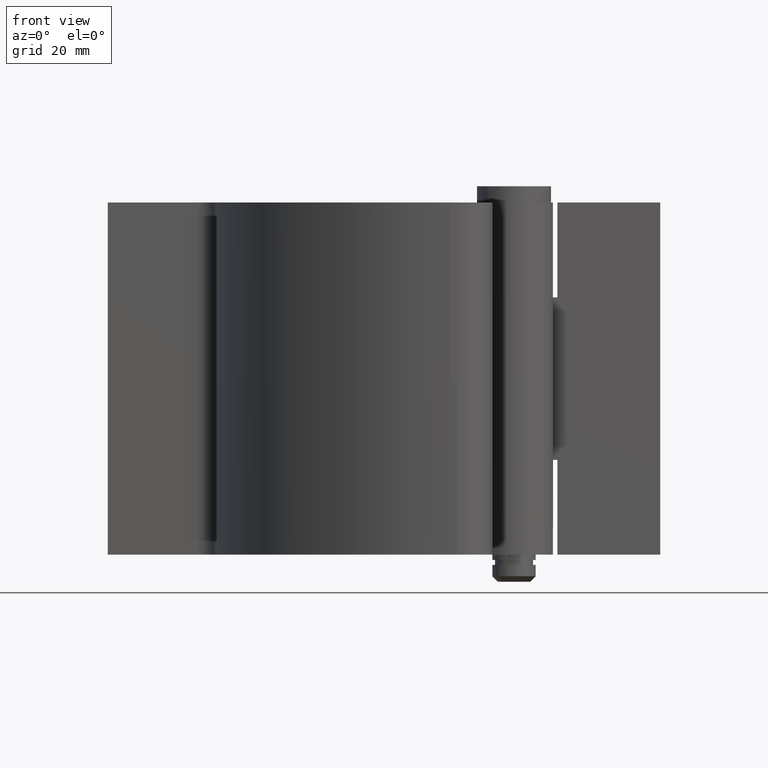
[diagram: clean part render]
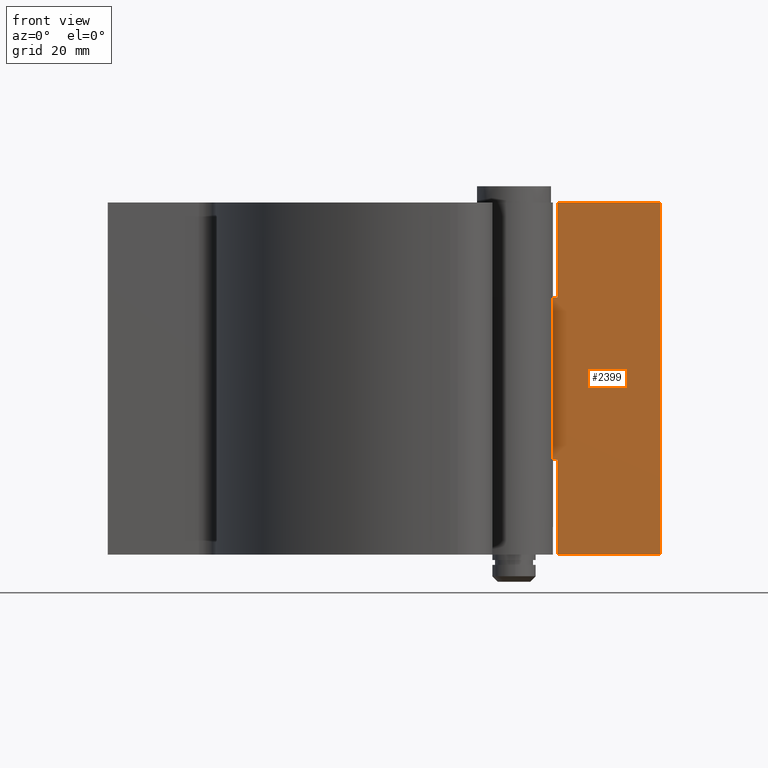
[diagram: same view with one face highlighted and labeled with its STEP entity id]
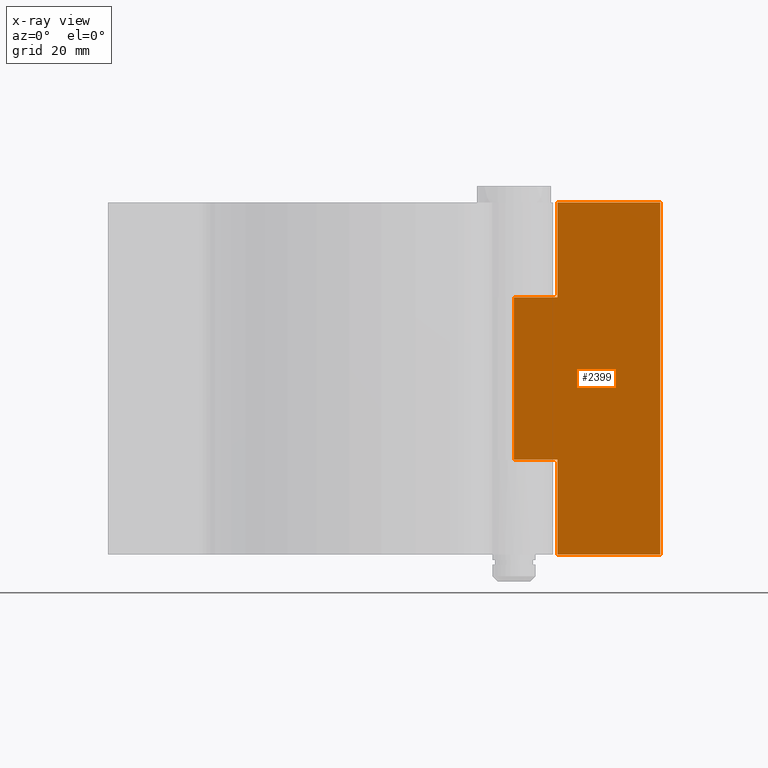
[diagram: x-ray of the same camera — body ghosted, the highlighted face saturated]
A machine part, front view. The second image highlights one B-rep face of the part: STEP entity #2399.
The next image is the same camera in x-ray: the body ghosted, the highlighted face saturated — about 0% of this face is hidden behind the body in this view.
In plain terms, the highlighted face is a freeform B-spline surface patch.
Its self-contained STEP definition (entity closure, byte-faithful):
#2048=CARTESIAN_POINT('',(-3.552714E-015,4.0,52.500000000000000));
#2049=VERTEX_POINT('',#2048);
#2050=CARTESIAN_POINT('',(8.0,4.0,52.500000000000000));
#2051=VERTEX_POINT('',#2050);
#2052=CARTESIAN_POINT('',(-3.552714E-015,4.0,52.500000000000000));
#2053=CARTESIAN_POINT('',(8.0,4.0,52.500000000000000));
#2054=QUASI_UNIFORM_CURVE('',1,(#2052,#2053),.UNSPECIFIED.,.F.,.U.);
#2055=EDGE_CURVE('',#2049,#2051,#2054,.T.);
#2126=CARTESIAN_POINT('',(8.0,4.0,70.0));
#2127=VERTEX_POINT('',#2126);
#2141=CARTESIAN_POINT('',(8.0,4.0,52.500000000000000));
#2142=CARTESIAN_POINT('',(8.0,4.0,70.0));
#2143=QUASI_UNIFORM_CURVE('',1,(#2141,#2142),.UNSPECIFIED.,.F.,.U.);
#2144=EDGE_CURVE('',#2051,#2127,#2143,.T.);
#2154=CARTESIAN_POINT('',(-3.552714E-015,4.0,22.500000000000000));
#2155=VERTEX_POINT('',#2154);
#2212=CARTESIAN_POINT('',(8.0,4.0,22.500000000000000));
#2213=VERTEX_POINT('',#2212);
#2219=CARTESIAN_POINT('',(-3.552714E-015,4.0,22.500000000000000));
#2220=CARTESIAN_POINT('',(8.0,4.0,22.500000000000000));
#2221=QUASI_UNIFORM_CURVE('',1,(#2219,#2220),.UNSPECIFIED.,.F.,.U.);
#2222=EDGE_CURVE('',#2155,#2213,#2221,.T.);
#2232=CARTESIAN_POINT('',(8.0,4.0,5.0));
#2233=VERTEX_POINT('',#2232);
#2241=CARTESIAN_POINT('',(8.0,4.0,22.500000000000000));
#2242=CARTESIAN_POINT('',(8.0,4.0,5.0));
#2243=QUASI_UNIFORM_CURVE('',1,(#2241,#2242),.UNSPECIFIED.,.F.,.U.);
#2244=EDGE_CURVE('',#2213,#2233,#2243,.T.);
#2262=CARTESIAN_POINT('',(27.0,4.0,5.0));
#2263=VERTEX_POINT('',#2262);
#2276=CARTESIAN_POINT('',(27.0,4.0,70.0));
#2277=VERTEX_POINT('',#2276);
#2283=CARTESIAN_POINT('',(27.0,4.0,70.0));
#2284=CARTESIAN_POINT('',(27.0,4.0,5.0));
#2285=QUASI_UNIFORM_CURVE('',1,(#2283,#2284),.UNSPECIFIED.,.F.,.U.);
#2286=EDGE_CURVE('',#2277,#2263,#2285,.T.);
#2296=CARTESIAN_POINT('',(27.0,4.0,5.0));
#2297=CARTESIAN_POINT('',(8.0,4.0,5.0));
#2298=QUASI_UNIFORM_CURVE('',1,(#2296,#2297),.UNSPECIFIED.,.F.,.U.);
#2299=EDGE_CURVE('',#2263,#2233,#2298,.T.);
#2317=CARTESIAN_POINT('',(27.0,4.0,70.0));
#2318=CARTESIAN_POINT('',(8.0,4.0,70.0));
#2319=QUASI_UNIFORM_CURVE('',1,(#2317,#2318),.UNSPECIFIED.,.F.,.U.);
#2320=EDGE_CURVE('',#2277,#2127,#2319,.T.);
#2376=CARTESIAN_POINT('',(-3.552714E-015,4.0,52.500000000000000));
#2377=CARTESIAN_POINT('',(-3.552714E-015,4.0,22.500000000000000));
#2378=QUASI_UNIFORM_CURVE('',1,(#2376,#2377),.UNSPECIFIED.,.F.,.U.);
#2379=EDGE_CURVE('',#2049,#2155,#2378,.T.);
#2384=CARTESIAN_POINT('',(-1.348649947668763,4.0,73.246749874017397));
#2385=CARTESIAN_POINT('',(-1.348649947668763,4.0,1.753248382546753));
#2386=CARTESIAN_POINT('',(28.348650671865190,4.0,73.246749874017397));
#2387=CARTESIAN_POINT('',(28.348650671865190,4.0,1.753248382546753));
#2388=B_SPLINE_SURFACE_WITH_KNOTS('',1,1,((#2384,#2386),(#2385,#2387)),.UNSPECIFIED.,.F.,.F.,.U.,(2,2),(2,2),(0.0,71.493501491470639),(0.0,29.697300619533952),.UNSPECIFIED.);
#2389=ORIENTED_EDGE('',*,*,#2320,.T.);
#2390=ORIENTED_EDGE('',*,*,#2144,.F.);
#2391=ORIENTED_EDGE('',*,*,#2055,.F.);
#2392=ORIENTED_EDGE('',*,*,#2379,.T.);
#2393=ORIENTED_EDGE('',*,*,#2222,.T.);
#2394=ORIENTED_EDGE('',*,*,#2244,.T.);
#2395=ORIENTED_EDGE('',*,*,#2299,.F.);
#2396=ORIENTED_EDGE('',*,*,#2286,.F.);
#2397=EDGE_LOOP('',(#2389,#2390,#2391,#2392,#2393,#2394,#2395,#2396));
#2398=FACE_OUTER_BOUND('',#2397,.T.);
#2399=ADVANCED_FACE('',(#2398),#2388,.T.);